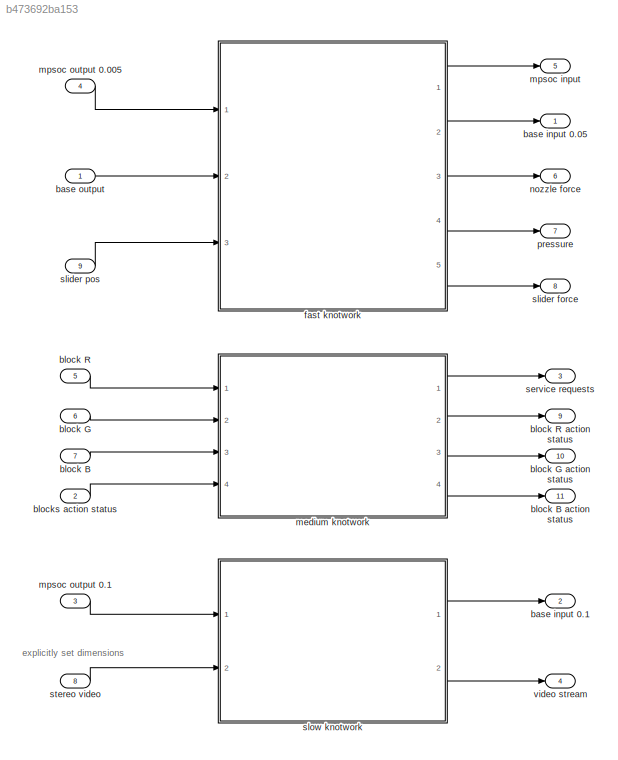
MODEL slx_b473692ba153
KIND model
BLOCK [Outport] base input 0.05
  BusOutputAsStruct = on
  IconDisplay = Port number
  OutDataTypeStr = Bus: slBusSliderStatus
  SampleTime = 0.005
BLOCK [Outport] base input 0.1
  BusOutputAsStruct = on
  IconDisplay = Port number
  OutDataTypeStr = Bus: slBusStereoOps
  Port = 2
  SampleTime = 0.1
BLOCK [Inport] base output
  IconDisplay = Port number
  OutDataTypeStr = Bus: slBusBaseOps
BLOCK [Inport] block B
  BusOutputAsStruct = on
  IconDisplay = Port number
  OutDataTypeStr = Bus: slBusBlockOps
  Port = 7
  SampleTime = 0.05
BLOCK [Outport] block B action status
  BusOutputAsStruct = on
  IconDisplay = Port number
  Port = 11
BLOCK [Inport] block G
  BusOutputAsStruct = on
  IconDisplay = Port number
  OutDataTypeStr = Bus: slBusBlockOps
  Port = 6
  SampleTime = 0.05
BLOCK [Outport] block G action status
  BusOutputAsStruct = on
  IconDisplay = Port number
  Port = 10
BLOCK [Inport] block R
  BusOutputAsStruct = on
  IconDisplay = Port number
  OutDataTypeStr = Bus: slBusBlockOps
  Port = 5
  SampleTime = 0.05
BLOCK [Outport] block R action status
  BusOutputAsStruct = on
  IconDisplay = Port number
  Port = 9
BLOCK [Inport] blocks action status
  IconDisplay = Port number
  Port = 2
  SampleTime = 0.05
BLOCK [ModelReference] fast knotwork
  CopyOfModelName = cps_fast_network_v2
  DefaultDataLogging = on
  ModelNameDialog = cps_fast_network_v2
  ModelReferenceVersion = 1.571
  Ports = [3, 5]
BLOCK [ModelReference] medium knotwork
  CopyOfModelName = cps_medium_network_v2
  DefaultDataLogging = on
  ModelNameDialog = cps_medium_network_v2
  ModelReferenceVersion = 1.570
  Ports = [4, 4]
BLOCK [Outport] mpsoc input
  BusOutputAsStruct = on
  IconDisplay = Port number
  OutDataTypeStr = Bus: slBusSliderControlOps
  Port = 5
BLOCK [Inport] mpsoc output 0.005
  IconDisplay = Port number
  OutDataTypeStr = Bus: slBusNozzleControl
  Port = 4
BLOCK [Inport] mpsoc output 0.1
  IconDisplay = Port number
  OutDataTypeStr = Bus: slBusStereoOps
  Port = 3
BLOCK [Outport] nozzle force
  IconDisplay = Port number
  Port = 6
BLOCK [Outport] pressure
  IconDisplay = Port number
  Port = 7
BLOCK [Outport] service requests
  BusOutputAsStruct = on
  IconDisplay = Port number
  OutDataTypeStr = Bus: slBusBlockOps
  Port = 3
  PortDimensions = 3
BLOCK [Outport] slider force
  IconDisplay = Port number
  Port = 8
BLOCK [Inport] slider pos
  IconDisplay = Port number
  Port = 9
BLOCK [ModelReference] slow knotwork
  CopyOfModelName = cps_slow_network_v2
  DefaultDataLogging = on
  ModelNameDialog = cps_slow_network_v2
  ModelReferenceVersion = 1.562
  Ports = [2, 2]
BLOCK [Inport] stereo video
  IconDisplay = Port number
  OutDataTypeStr = uint8
  Port = 8
  PortDimensions = [400 240 6]
  SampleTime = 0.1
BLOCK [Outport] video stream
  IconDisplay = Port number
  Port = 4
  SampleTime = 0.1
ANNOTATION (root): explicitly set dimensions
LINE base output:1 -> fast knotwork:2
LINE block B:1 -> medium knotwork:3
LINE block G:1 -> medium knotwork:2
LINE block R:1 -> medium knotwork:1
LINE blocks action status:1 -> medium knotwork:4
LINE fast knotwork:1 -> mpsoc input:1
LINE fast knotwork:2 -> base input 0.05:1
LINE fast knotwork:3 -> nozzle force:1
LINE fast knotwork:4 -> pressure:1
LINE fast knotwork:5 -> slider force:1
LINE medium knotwork:1 -> service requests:1
LINE medium knotwork:2 -> block R action status:1
LINE medium knotwork:3 -> block G action status:1
LINE medium knotwork:4 -> block B action status:1
LINE mpsoc output 0.005:1 -> fast knotwork:1
LINE mpsoc output 0.1:1 -> slow knotwork:1
LINE slider pos:1 -> fast knotwork:3
LINE slow knotwork:1 -> base input 0.1:1
LINE slow knotwork:2 -> video stream:1
LINE stereo video:1 -> slow knotwork:2
